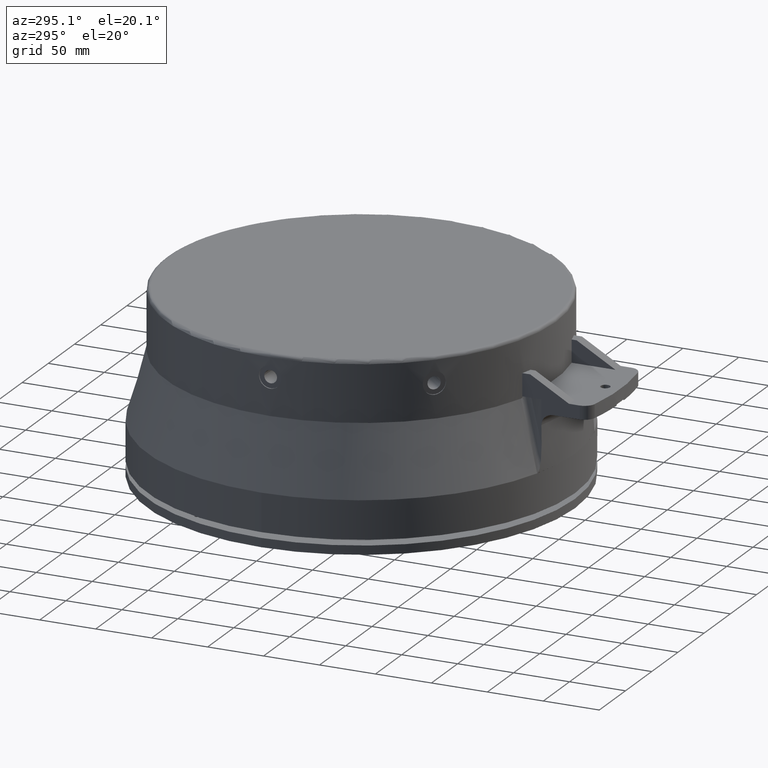
[diagram: clean part render]
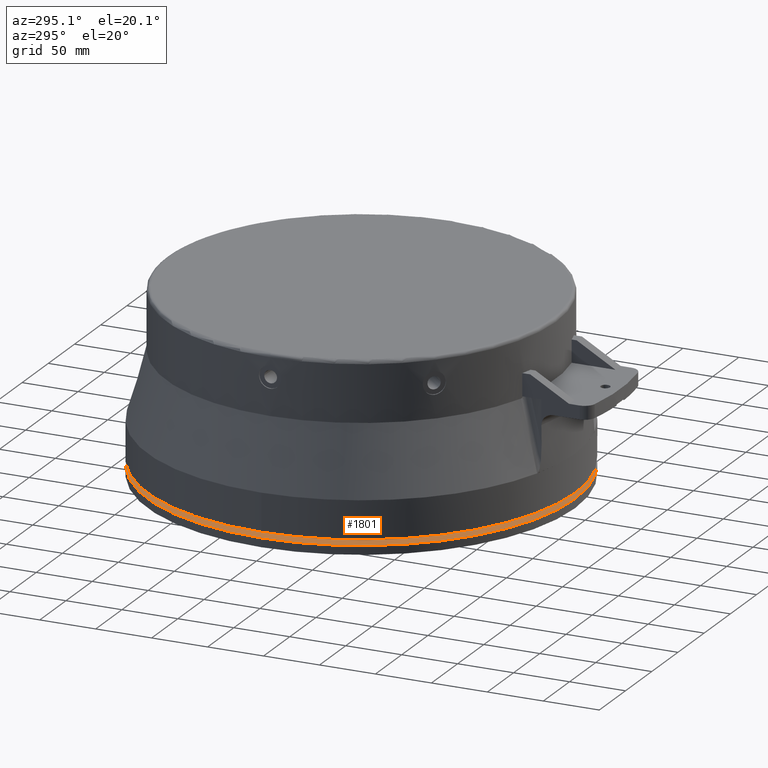
[diagram: same view with one face highlighted and labeled with its STEP entity id]
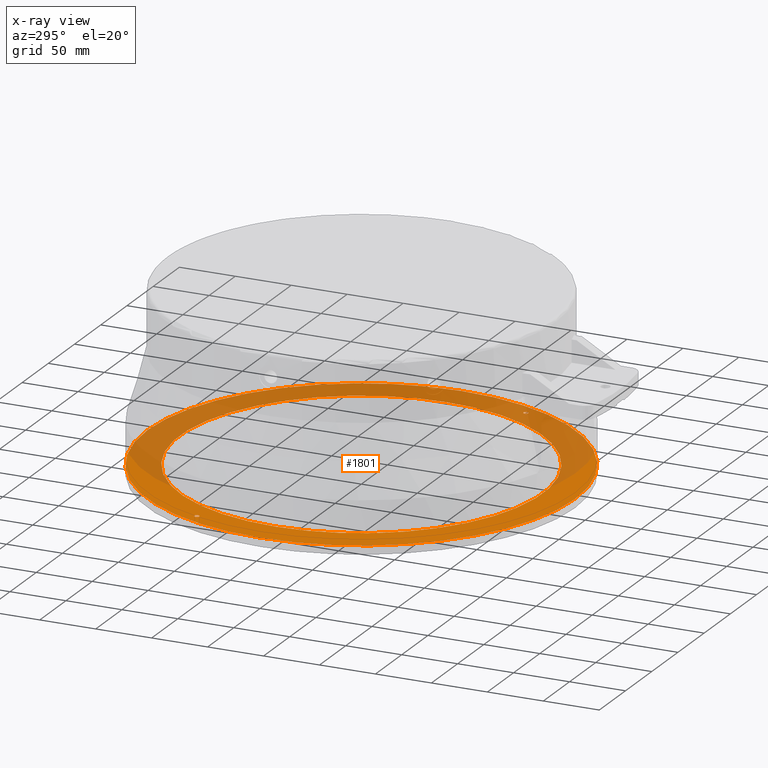
[diagram: x-ray of the same camera — body ghosted, the highlighted face saturated]
A machine part, auxiliary view. The second image highlights one B-rep face of the part: STEP entity #1801.
The next image is the same camera in x-ray: the body ghosted, the highlighted face saturated — about 53% of this face is hidden behind the body in this view.
In plain terms, the highlighted planar face has unit normal (0, 0, 1).
Its self-contained STEP definition (entity closure, byte-faithful):
#353=CARTESIAN_POINT('',(2.810564404043E-14,0.E0,-1.53E2));
#354=DIRECTION('',(0.E0,0.E0,1.E0));
#355=DIRECTION('',(1.E0,0.E0,0.E0));
#356=AXIS2_PLACEMENT_3D('',#353,#354,#355);
#384=CARTESIAN_POINT('',(-1.665292857352E2,6.897868868381E1,-1.53E2));
#385=DIRECTION('',(0.E0,0.E0,-1.E0));
#386=DIRECTION('',(1.E0,0.E0,0.E0));
#387=AXIS2_PLACEMENT_3D('',#384,#385,#386);
#389=CARTESIAN_POINT('',(-1.665292857352E2,6.897868868381E1,-1.53E2));
#390=DIRECTION('',(0.E0,0.E0,-1.E0));
#391=DIRECTION('',(-1.E0,0.E0,0.E0));
#392=AXIS2_PLACEMENT_3D('',#389,#390,#391);
#394=CARTESIAN_POINT('',(1.665292857352E2,-6.897868868381E1,-1.53E2));
#395=DIRECTION('',(0.E0,0.E0,-1.E0));
#396=DIRECTION('',(-1.E0,0.E0,0.E0));
#397=AXIS2_PLACEMENT_3D('',#394,#395,#396);
#399=CARTESIAN_POINT('',(1.665292857352E2,-6.897868868381E1,-1.53E2));
#400=DIRECTION('',(0.E0,0.E0,-1.E0));
#401=DIRECTION('',(1.E0,0.E0,0.E0));
#402=AXIS2_PLACEMENT_3D('',#399,#400,#401);
#404=CARTESIAN_POINT('',(0.E0,0.E0,-1.53E2));
#405=DIRECTION('',(0.E0,0.E0,1.E0));
#406=DIRECTION('',(1.E0,0.E0,0.E0));
#407=AXIS2_PLACEMENT_3D('',#404,#405,#406);
#413=CARTESIAN_POINT('',(0.E0,0.E0,-1.53E2));
#414=DIRECTION('',(0.E0,0.E0,-1.E0));
#415=DIRECTION('',(1.E0,0.E0,0.E0));
#416=AXIS2_PLACEMENT_3D('',#413,#414,#415);
#432=CARTESIAN_POINT('',(2.810564404043E-14,0.E0,-1.53E2));
#433=DIRECTION('',(0.E0,0.E0,1.E0));
#434=DIRECTION('',(-1.E0,0.E0,0.E0));
#435=AXIS2_PLACEMENT_3D('',#432,#433,#434);
#1516=CARTESIAN_POINT('',(-1.644292857352E2,6.897868868381E1,-1.53E2));
#1517=VERTEX_POINT('',#1516);
#1518=CARTESIAN_POINT('',(-1.686292857352E2,6.897868868381E1,-1.53E2));
#1519=VERTEX_POINT('',#1518);
#1524=CARTESIAN_POINT('',(1.644292857352E2,-6.897868868381E1,-1.53E2));
#1525=VERTEX_POINT('',#1524);
#1526=CARTESIAN_POINT('',(1.686292857352E2,-6.897868868381E1,-1.53E2));
#1527=VERTEX_POINT('',#1526);
#1625=CARTESIAN_POINT('',(1.62E2,1.322618543079E-14,-1.53E2));
#1627=VERTEX_POINT('',#1625);
#1629=CARTESIAN_POINT('',(-1.62E2,-1.322618543079E-14,-1.53E2));
#1631=VERTEX_POINT('',#1629);
#1633=CARTESIAN_POINT('',(-1.91E2,0.E0,-1.53E2));
#1634=CARTESIAN_POINT('',(1.91E2,-2.339075386371E-14,-1.53E2));
#1635=VERTEX_POINT('',#1633);
#1636=VERTEX_POINT('',#1634);
#1773=CARTESIAN_POINT('',(0.E0,0.E0,-1.53E2));
#1774=DIRECTION('',(0.E0,0.E0,1.E0));
#1775=DIRECTION('',(-1.E0,0.E0,0.E0));
#1776=AXIS2_PLACEMENT_3D('',#1773,#1774,#1775);
#1777=PLANE('',#1776);
#1779=ORIENTED_EDGE('',*,*,#1778,.F.);
#1780=ORIENTED_EDGE('',*,*,#1729,.F.);
#1781=EDGE_LOOP('',(#1779,#1780));
#1782=FACE_OUTER_BOUND('',#1781,.F.);
#1784=ORIENTED_EDGE('',*,*,#1783,.T.);
#1786=ORIENTED_EDGE('',*,*,#1785,.F.);
#1787=EDGE_LOOP('',(#1784,#1786));
#1788=FACE_BOUND('',#1787,.F.);
#1790=ORIENTED_EDGE('',*,*,#1789,.F.);
#1792=ORIENTED_EDGE('',*,*,#1791,.F.);
#1793=EDGE_LOOP('',(#1790,#1792));
#1794=FACE_BOUND('',#1793,.F.);
#1796=ORIENTED_EDGE('',*,*,#1795,.F.);
#1798=ORIENTED_EDGE('',*,*,#1797,.F.);
#1799=EDGE_LOOP('',(#1796,#1798));
#1800=FACE_BOUND('',#1799,.F.);
#357=CIRCLE('',#356,1.91E2);
#388=CIRCLE('',#387,2.1E0);
#393=CIRCLE('',#392,2.1E0);
#398=CIRCLE('',#397,2.1E0);
#403=CIRCLE('',#402,2.1E0);
#408=CIRCLE('',#407,1.62E2);
#417=CIRCLE('',#416,1.62E2);
#436=CIRCLE('',#435,1.91E2);
#1729=EDGE_CURVE('',#1636,#1635,#357,.T.);
#1778=EDGE_CURVE('',#1635,#1636,#436,.T.);
#1783=EDGE_CURVE('',#1627,#1631,#408,.T.);
#1785=EDGE_CURVE('',#1627,#1631,#417,.T.);
#1789=EDGE_CURVE('',#1517,#1519,#388,.T.);
#1791=EDGE_CURVE('',#1519,#1517,#393,.T.);
#1795=EDGE_CURVE('',#1525,#1527,#398,.T.);
#1797=EDGE_CURVE('',#1527,#1525,#403,.T.);
#1801=ADVANCED_FACE('',(#1782,#1788,#1794,#1800),#1777,.T.);